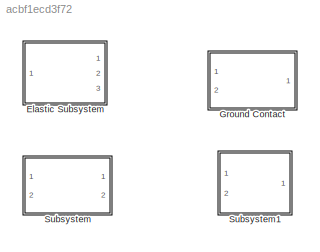
MODEL slx_acbf1ecd3f72
KIND library
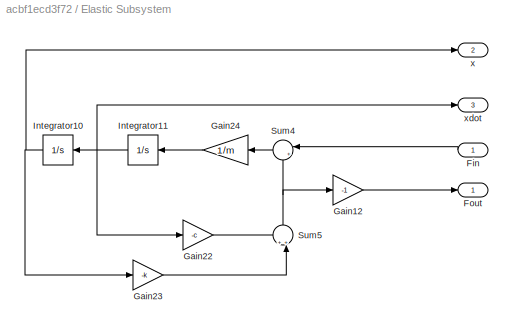
BLOCK [SubSystem] Elastic Subsystem
  FunctionWithSeparateData = off
  MaskHideContents = off
  MinAlgLoopOccurrences = off
  Opaque = off
  Ports = [1, 3]
  PropExecContextOutsideSubsystem = off
  RTWSystemCode = Auto
  RequestExecContextInheritance = off
BLOCK [Inport] Elastic Subsystem/Fin
  IconDisplay = Port number
BLOCK [Outport] Elastic Subsystem/Fout
  IconDisplay = Port number
BLOCK [Gain] Elastic Subsystem/Gain12
  Gain = -1
  OutDataTypeStr = Inherit: Inherit via internal rule
  ParamDataTypeStr = Inherit: Inherit via internal rule
  SaturateOnIntegerOverflow = off
BLOCK [Gain] Elastic Subsystem/Gain22
  Gain = -c
  OutDataTypeStr = Inherit: Inherit via internal rule
  ParamDataTypeStr = Inherit: Inherit via internal rule
  SaturateOnIntegerOverflow = off
BLOCK [Gain] Elastic Subsystem/Gain23
  Gain = -k
  OutDataTypeStr = Inherit: Inherit via internal rule
  ParamDataTypeStr = Inherit: Inherit via internal rule
  SaturateOnIntegerOverflow = off
BLOCK [Gain] Elastic Subsystem/Gain24
  Gain = 1/m
  OutDataTypeStr = Inherit: Inherit via internal rule
  ParamDataTypeStr = Inherit: Inherit via internal rule
  SaturateOnIntegerOverflow = off
BLOCK [Integrator] Elastic Subsystem/Integrator10
  Ports = [1, 1]
BLOCK [Integrator] Elastic Subsystem/Integrator11
  Ports = [1, 1]
BLOCK [Sum] Elastic Subsystem/Sum4
  IconShape = round
  InputSameDT = off
  Inputs = |++
  OutDataTypeStr = Inherit: Inherit via internal rule
  Ports = [2, 1]
  SaturateOnIntegerOverflow = off
BLOCK [Sum] Elastic Subsystem/Sum5
  IconShape = round
  InputSameDT = off
  Inputs = ++|
  OutDataTypeStr = Inherit: Inherit via internal rule
  Ports = [2, 1]
  SaturateOnIntegerOverflow = off
BLOCK [Outport] Elastic Subsystem/x
  IconDisplay = Port number
  Port = 2
BLOCK [Outport] Elastic Subsystem/xdot
  IconDisplay = Port number
  Port = 3
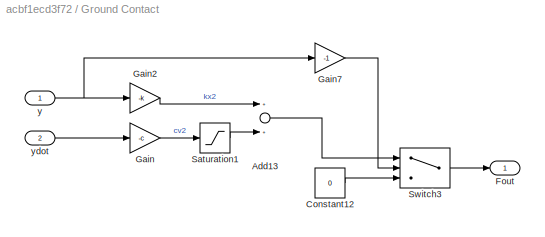
BLOCK [SubSystem] Ground Contact
  FunctionWithSeparateData = off
  MaskHideContents = off
  MinAlgLoopOccurrences = off
  Opaque = off
  Ports = [2, 1]
  PropExecContextOutsideSubsystem = off
  RTWSystemCode = Auto
  RequestExecContextInheritance = off
BLOCK [Sum] Ground Contact/Add13
  InputSameDT = off
  OutDataTypeStr = Inherit: Inherit via internal rule
  Ports = [2, 1]
  SaturateOnIntegerOverflow = off
BLOCK [Constant] Ground Contact/Constant12
  Value = 0
BLOCK [Outport] Ground Contact/Fout
  IconDisplay = Port number
BLOCK [Gain] Ground Contact/Gain
  Gain = -c
  OutDataTypeStr = Inherit: Inherit via internal rule
  ParamDataTypeStr = Inherit: Inherit via internal rule
  SaturateOnIntegerOverflow = off
BLOCK [Gain] Ground Contact/Gain2
  Gain = -k
  OutDataTypeStr = Inherit: Inherit via internal rule
  ParamDataTypeStr = Inherit: Inherit via internal rule
  SaturateOnIntegerOverflow = off
BLOCK [Gain] Ground Contact/Gain7
  Gain = -1
  OutDataTypeStr = Inherit: Inherit via internal rule
  ParamDataTypeStr = Inherit: Inherit via internal rule
  SaturateOnIntegerOverflow = off
BLOCK [Saturate] Ground Contact/Saturation1
  InputPortMap = u0
  LowerLimit = 0
  Ports = [1, 1]
  UpperLimit = inf
BLOCK [Switch] Ground Contact/Switch3
  InputSameDT = off
  SaturateOnIntegerOverflow = off
BLOCK [Inport] Ground Contact/y
  IconDisplay = Port number
BLOCK [Inport] Ground Contact/ydot
  IconDisplay = Port number
  Port = 2
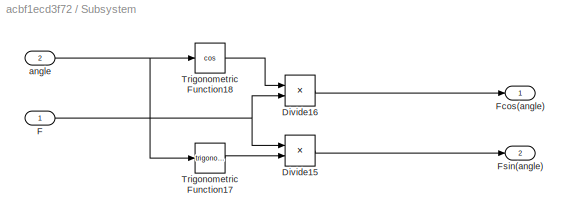
BLOCK [SubSystem] Subsystem
  FunctionWithSeparateData = off
  MaskHideContents = off
  MinAlgLoopOccurrences = off
  Opaque = off
  Ports = [2, 2]
  PropExecContextOutsideSubsystem = off
  RTWSystemCode = Auto
  RequestExecContextInheritance = off
BLOCK [Product] Subsystem/Divide15
  InputSameDT = off
  Inputs = **
  OutDataTypeStr = Inherit: Inherit via internal rule
  Ports = [2, 1]
  RndMeth = Floor
  SaturateOnIntegerOverflow = off
BLOCK [Product] Subsystem/Divide16
  InputSameDT = off
  Inputs = **
  OutDataTypeStr = Inherit: Inherit via internal rule
  Ports = [2, 1]
  RndMeth = Floor
  SaturateOnIntegerOverflow = off
BLOCK [Inport] Subsystem/F
  IconDisplay = Port number
BLOCK [Outport] Subsystem/Fcos(angle)
  IconDisplay = Port number
BLOCK [Outport] Subsystem/Fsin(angle)
  IconDisplay = Port number
  Port = 2
BLOCK [Trigonometry] Subsystem/Trigonometric Function17
  Ports = [1, 1]
BLOCK [Trigonometry] Subsystem/Trigonometric Function18
  Operator = cos
  Ports = [1, 1]
BLOCK [Inport] Subsystem/angle
  IconDisplay = Port number
  Port = 2
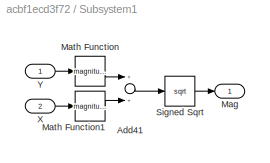
BLOCK [SubSystem] Subsystem1
  FunctionWithSeparateData = off
  MaskHideContents = off
  MinAlgLoopOccurrences = off
  Opaque = off
  Ports = [2, 1]
  PropExecContextOutsideSubsystem = off
  RTWSystemCode = Auto
  RequestExecContextInheritance = off
BLOCK [Sum] Subsystem1/Add41
  InputSameDT = off
  OutDataTypeStr = Inherit: Inherit via internal rule
  Ports = [2, 1]
  SaturateOnIntegerOverflow = off
BLOCK [Outport] Subsystem1/Mag
  IconDisplay = Port number
BLOCK [Math] Subsystem1/Math Function
  Operator = magnitude^2
  Ports = [1, 1]
BLOCK [Math] Subsystem1/Math Function1
  Operator = magnitude^2
  Ports = [1, 1]
BLOCK [Sqrt] Subsystem1/Signed Sqrt
BLOCK [Inport] Subsystem1/X
  IconDisplay = Port number
  Port = 2
BLOCK [Inport] Subsystem1/Y
  IconDisplay = Port number
LINE Elastic Subsystem/Fin:1 -> Elastic Subsystem/Sum4:1
LINE Elastic Subsystem/Gain12:1 -> Elastic Subsystem/Fout:1
LINE Elastic Subsystem/Gain22:1 -> Elastic Subsystem/Sum5:1
LINE Elastic Subsystem/Gain23:1 -> Elastic Subsystem/Sum5:2
LINE Elastic Subsystem/Gain24:1 -> Elastic Subsystem/Integrator11:1
NET Elastic Subsystem/Integrator10:1 -> Elastic Subsystem/Gain23:1, Elastic Subsystem/x:1
NET Elastic Subsystem/Integrator11:1 -> Elastic Subsystem/Gain22:1, Elastic Subsystem/Integrator10:1, Elastic Subsystem/xdot:1
LINE Elastic Subsystem/Sum4:1 -> Elastic Subsystem/Gain24:1
NET Elastic Subsystem/Sum5:1 -> Elastic Subsystem/Gain12:1, Elastic Subsystem/Sum4:2
LINE Ground Contact/Add13:1 -> Ground Contact/Switch3:1
LINE Ground Contact/Constant12:1 -> Ground Contact/Switch3:3
LINE Ground Contact/Gain2:1 -> Ground Contact/Add13:1
LINE Ground Contact/Gain7:1 -> Ground Contact/Switch3:2
LINE Ground Contact/Gain:1 -> Ground Contact/Saturation1:1
LINE Ground Contact/Saturation1:1 -> Ground Contact/Add13:2
LINE Ground Contact/Switch3:1 -> Ground Contact/Fout:1
NET Ground Contact/y:1 -> Ground Contact/Gain2:1, Ground Contact/Gain7:1
LINE Ground Contact/ydot:1 -> Ground Contact/Gain:1
LINE Subsystem/Divide15:1 -> Subsystem/Fsin(angle):1
LINE Subsystem/Divide16:1 -> Subsystem/Fcos(angle):1
NET Subsystem/F:1 -> Subsystem/Divide15:1, Subsystem/Divide16:2
LINE Subsystem/Trigonometric Function17:1 -> Subsystem/Divide15:2
LINE Subsystem/Trigonometric Function18:1 -> Subsystem/Divide16:1
NET Subsystem/angle:1 -> Subsystem/Trigonometric Function17:1, Subsystem/Trigonometric Function18:1
LINE Subsystem1/Add41:1 -> Subsystem1/Signed Sqrt:1
LINE Subsystem1/Math Function1:1 -> Subsystem1/Add41:2
LINE Subsystem1/Math Function:1 -> Subsystem1/Add41:1
LINE Subsystem1/Signed Sqrt:1 -> Subsystem1/Mag:1
LINE Subsystem1/X:1 -> Subsystem1/Math Function1:1
LINE Subsystem1/Y:1 -> Subsystem1/Math Function:1
note: NET lines group one-source signal fan-out (src -> all destinations, sorted); 1:1 wires keep LINE
